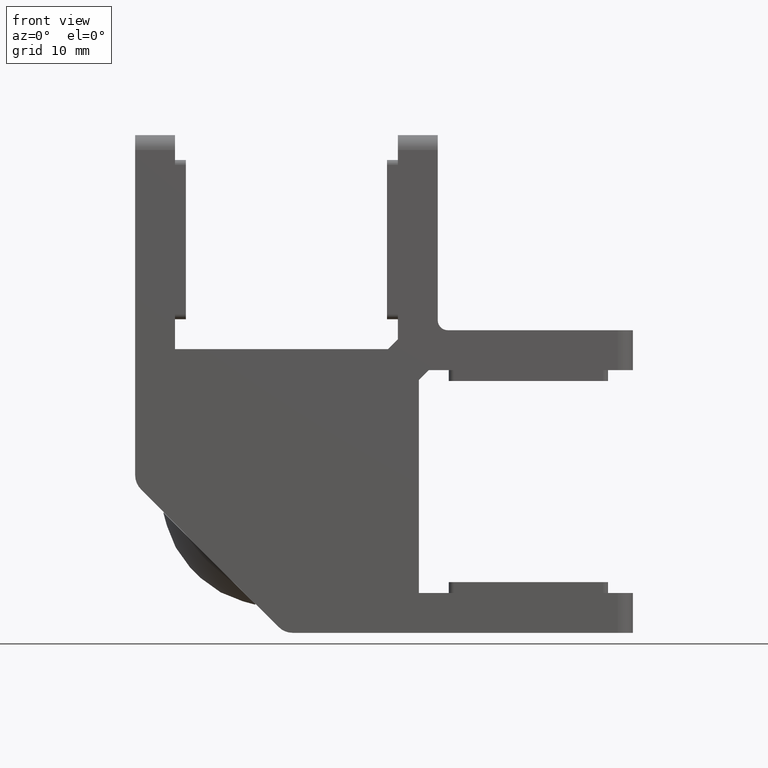
[diagram: clean part render]
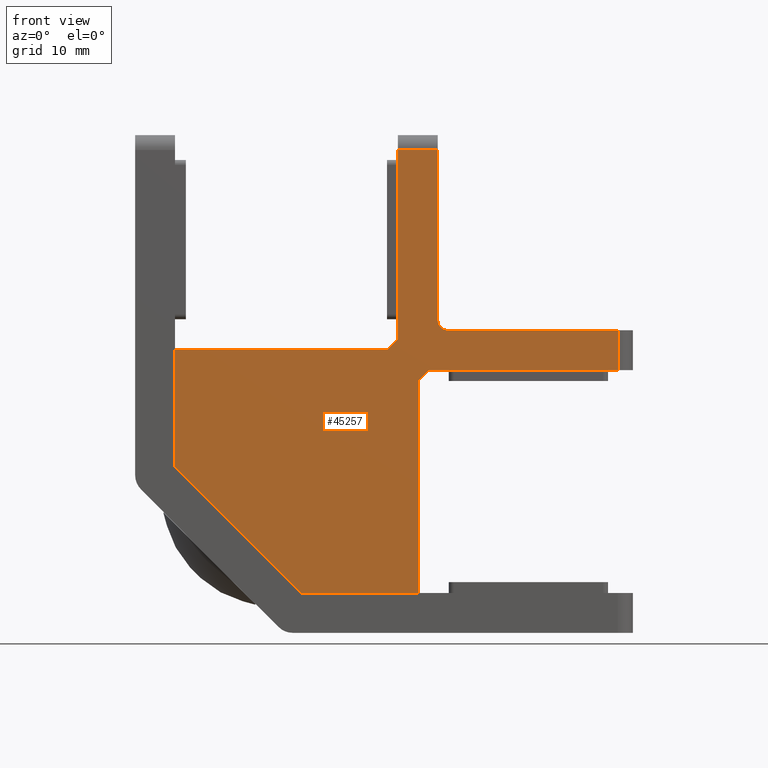
[diagram: same view with one face highlighted and labeled with its STEP entity id]
A machine part, front view. The second image highlights one B-rep face of the part: STEP entity #45257.
In plain terms, the highlighted planar face has unit normal (0, 1, 0).
Its self-contained STEP definition (entity closure, byte-faithful):
#224 = DIRECTION ( 'NONE',  ( -1.000000000000000000, 0.000000000000000000, 0.000000000000000000 ) ) ;
#295 = VECTOR ( 'NONE', #224, 1000.000000000000000 ) ;
#1444 = CARTESIAN_POINT ( 'NONE',  ( 0.000000000000000000, -10.00000000000000000, 28.50000000000001421 ) ) ;
#1585 = CARTESIAN_POINT ( 'NONE',  ( 48.49999999999998579, -10.00000000000000000, 26.40000000000000568 ) ) ;
#2387 = DIRECTION ( 'NONE',  ( -0.7071067811865451302, 0.000000000000000000, -0.7071067811865500152 ) ) ;
#2462 = DIRECTION ( 'NONE',  ( 0.000000000000000000, 1.000000000000000000, -0.000000000000000000 ) ) ;
#2594 = VERTEX_POINT ( 'NONE', #46825 ) ;
#2857 = PLANE ( 'NONE',  #28027 ) ;
#4964 = VERTEX_POINT ( 'NONE', #30209 ) ;
#5216 = VECTOR ( 'NONE', #13204, 1000.000000000000114 ) ;
#7483 = LINE ( 'NONE', #61881, #34660 ) ;
#8284 = EDGE_CURVE ( 'NONE', #58842, #2594, #13595, .T. ) ;
#8390 = LINE ( 'NONE', #31306, #43127 ) ;
#8475 = VERTEX_POINT ( 'NONE', #10373 ) ;
#9007 = VECTOR ( 'NONE', #18798, 1000.000000000000000 ) ;
#9622 = CARTESIAN_POINT ( 'NONE',  ( 28.49999999999998934, -10.00000000000000000, 0.000000000000000000 ) ) ;
#10345 = VECTOR ( 'NONE', #18848, 1000.000000000000000 ) ;
#10373 = CARTESIAN_POINT ( 'NONE',  ( 3.999999999999994671, -10.00000000000000000, 16.65999999999999659 ) ) ;
#10638 = LINE ( 'NONE', #45583, #40045 ) ;
#11154 = CARTESIAN_POINT ( 'NONE',  ( 25.39999999999998082, -10.00000000000000000, 28.50000000000001421 ) ) ;
#11646 = CARTESIAN_POINT ( 'NONE',  ( 31.39999999999999147, -10.00000000000000000, 31.40000000000001279 ) ) ;
#11657 = CARTESIAN_POINT ( 'NONE',  ( 29.49999999999998579, -10.00000000000000000, 26.40000000000000568 ) ) ;
#12176 = LINE ( 'NONE', #30200, #23430 ) ;
#12858 = EDGE_CURVE ( 'NONE', #2594, #53572, #54065, .T. ) ;
#13204 = DIRECTION ( 'NONE',  ( 0.7071067811865451302, 0.000000000000000000, 0.7071067811865500152 ) ) ;
#13265 = VERTEX_POINT ( 'NONE', #11154 ) ;
#13595 = LINE ( 'NONE', #23202, #59687 ) ;
#13667 = ORIENTED_EDGE ( 'NONE', *, *, #8284, .T. ) ;
#13830 = EDGE_CURVE ( 'NONE', #15611, #24230, #59630, .T. ) ;
#13861 = CARTESIAN_POINT ( 'NONE',  ( 30.39999999999997016, -10.00000000000000000, -2.152473211007954343E-14 ) ) ;
#14259 = DIRECTION ( 'NONE',  ( 0.000000000000000000, 0.000000000000000000, -1.000000000000000000 ) ) ;
#14521 = EDGE_CURVE ( 'NONE', #23557, #44927, #27133, .T. ) ;
#15611 = VERTEX_POINT ( 'NONE', #57859 ) ;
#15849 = ORIENTED_EDGE ( 'NONE', *, *, #53655, .T. ) ;
#15919 = CARTESIAN_POINT ( 'NONE',  ( 30.40000000000000213, -10.00000000000000000, 48.50000000000000711 ) ) ;
#16495 = DIRECTION ( 'NONE',  ( 0.000000000000000000, 0.000000000000000000, 1.000000000000000000 ) ) ;
#16973 = EDGE_CURVE ( 'NONE', #44927, #28549, #46578, .T. ) ;
#16978 = CARTESIAN_POINT ( 'NONE',  ( 28.49999999999998934, -10.00000000000000000, 25.40000000000000568 ) ) ;
#17645 = VECTOR ( 'NONE', #14259, 1000.000000000000000 ) ;
#18747 = VERTEX_POINT ( 'NONE', #29263 ) ;
#18798 = DIRECTION ( 'NONE',  ( -6.454785026890447594E-16, 0.000000000000000000, -1.000000000000000000 ) ) ;
#18848 = DIRECTION ( 'NONE',  ( 1.000000000000000000, -0.000000000000000000, 0.000000000000000000 ) ) ;
#19805 = LINE ( 'NONE', #48105, #55311 ) ;
#20005 = AXIS2_PLACEMENT_3D ( 'NONE', #11646, #54871, #16495 ) ;
#20316 = FACE_OUTER_BOUND ( 'NONE', #53698, .T. ) ;
#20832 = EDGE_CURVE ( 'NONE', #43767, #15611, #59972, .T. ) ;
#20917 = DIRECTION ( 'NONE',  ( -7.325690354631776256E-17, 0.000000000000000000, -1.000000000000000000 ) ) ;
#21191 = ORIENTED_EDGE ( 'NONE', *, *, #32010, .F. ) ;
#23202 = CARTESIAN_POINT ( 'NONE',  ( 0.000000000000000000, -10.00000000000000000, 30.40000000000000924 ) ) ;
#23407 = EDGE_CURVE ( 'NONE', #24230, #13265, #8390, .T. ) ;
#23430 = VECTOR ( 'NONE', #20917, 1000.000000000000000 ) ;
#23557 = VERTEX_POINT ( 'NONE', #16978 ) ;
#23880 = EDGE_CURVE ( 'NONE', #37478, #8475, #12176, .T. ) ;
#24230 = VERTEX_POINT ( 'NONE', #62179 ) ;
#24498 = CARTESIAN_POINT ( 'NONE',  ( 26.39999999999999503, -10.00000000000000000, 48.50000000000000711 ) ) ;
#26424 = CARTESIAN_POINT ( 'NONE',  ( 30.39999999999998792, -10.00000000000000000, 31.40000000000001279 ) ) ;
#27133 = LINE ( 'NONE', #35587, #5216 ) ;
#28027 = AXIS2_PLACEMENT_3D ( 'NONE', #59848, #2462, #31378 ) ;
#28089 = ORIENTED_EDGE ( 'NONE', *, *, #13830, .T. ) ;
#28203 = DIRECTION ( 'NONE',  ( 7.080503983578804809E-16, 0.000000000000000000, 1.000000000000000000 ) ) ;
#28549 = VERTEX_POINT ( 'NONE', #1585 ) ;
#29263 = CARTESIAN_POINT ( 'NONE',  ( 16.66000000000009962, -10.00000000000000000, 4.000000000000000000 ) ) ;
#30200 = CARTESIAN_POINT ( 'NONE',  ( 3.999999999999994227, -10.00000000000000000, -2.930276141852706065E-16 ) ) ;
#30209 = CARTESIAN_POINT ( 'NONE',  ( 28.49999999999998934, -10.00000000000000000, 4.000000000000000000 ) ) ;
#31306 = CARTESIAN_POINT ( 'NONE',  ( -1.549999999999929878, -10.00000000000000000, 1.549999999999919220 ) ) ;
#31378 = DIRECTION ( 'NONE',  ( 0.000000000000000000, 0.000000000000000000, 1.000000000000000000 ) ) ;
#32010 = EDGE_CURVE ( 'NONE', #23557, #4964, #48548, .T. ) ;
#34660 = VECTOR ( 'NONE', #57670, 1000.000000000000114 ) ;
#34802 = EDGE_CURVE ( 'NONE', #28549, #58842, #10638, .T. ) ;
#35194 = ORIENTED_EDGE ( 'NONE', *, *, #58894, .F. ) ;
#35587 = CARTESIAN_POINT ( 'NONE',  ( 1.550000000000089528, -10.00000000000000000, -1.550000000000078648 ) ) ;
#35892 = ORIENTED_EDGE ( 'NONE', *, *, #12858, .T. ) ;
#37478 = VERTEX_POINT ( 'NONE', #54997 ) ;
#37785 = ORIENTED_EDGE ( 'NONE', *, *, #23880, .T. ) ;
#38107 = EDGE_CURVE ( 'NONE', #53572, #43767, #38198, .T. ) ;
#38198 = LINE ( 'NONE', #13861, #52558 ) ;
#40045 = VECTOR ( 'NONE', #45167, 1000.000000000000000 ) ;
#40095 = ORIENTED_EDGE ( 'NONE', *, *, #23407, .T. ) ;
#43127 = VECTOR ( 'NONE', #2387, 1000.000000000000114 ) ;
#43767 = VERTEX_POINT ( 'NONE', #15919 ) ;
#44478 = ORIENTED_EDGE ( 'NONE', *, *, #16973, .T. ) ;
#44927 = VERTEX_POINT ( 'NONE', #11657 ) ;
#45162 = VECTOR ( 'NONE', #54625, 1000.000000000000000 ) ;
#45167 = DIRECTION ( 'NONE',  ( -0.000000000000000000, 0.000000000000000000, 1.000000000000000000 ) ) ;
#45257 = ADVANCED_FACE ( 'NONE', ( #20316 ), #2857, .F. ) ;
#45463 = EDGE_CURVE ( 'NONE', #18747, #8475, #7483, .T. ) ;
#45583 = CARTESIAN_POINT ( 'NONE',  ( 48.49999999999998579, -10.00000000000000000, 30.40000000000000924 ) ) ;
#45807 = ORIENTED_EDGE ( 'NONE', *, *, #20832, .T. ) ;
#46372 = ORIENTED_EDGE ( 'NONE', *, *, #14521, .T. ) ;
#46578 = LINE ( 'NONE', #52823, #10345 ) ;
#46825 = CARTESIAN_POINT ( 'NONE',  ( 31.39999999999999147, -10.00000000000000000, 30.40000000000000924 ) ) ;
#47422 = LINE ( 'NONE', #1444, #45162 ) ;
#47481 = DIRECTION ( 'NONE',  ( 1.000000000000000000, -0.000000000000000000, 0.000000000000000000 ) ) ;
#47905 = DIRECTION ( 'NONE',  ( -1.000000000000000000, 0.000000000000000000, 0.000000000000000000 ) ) ;
#48105 = CARTESIAN_POINT ( 'NONE',  ( 0.000000000000000000, -10.00000000000000000, 4.000000000000000000 ) ) ;
#48548 = LINE ( 'NONE', #9622, #17645 ) ;
#50515 = ORIENTED_EDGE ( 'NONE', *, *, #45463, .F. ) ;
#52558 = VECTOR ( 'NONE', #28203, 1000.000000000000000 ) ;
#52823 = CARTESIAN_POINT ( 'NONE',  ( 0.000000000000000000, -10.00000000000000000, 26.40000000000000568 ) ) ;
#53572 = VERTEX_POINT ( 'NONE', #26424 ) ;
#53655 = EDGE_CURVE ( 'NONE', #18747, #4964, #19805, .T. ) ;
#53698 = EDGE_LOOP ( 'NONE', ( #21191, #46372, #44478, #60497, #13667, #35892, #61598, #45807, #28089, #40095, #35194, #37785, #50515, #15849 ) ) ;
#53984 = CARTESIAN_POINT ( 'NONE',  ( 48.49999999999998579, -10.00000000000000000, 30.40000000000000924 ) ) ;
#54065 = CIRCLE ( 'NONE', #20005, 1.000000000000000888 ) ;
#54625 = DIRECTION ( 'NONE',  ( 1.000000000000000000, -0.000000000000000000, 0.000000000000000000 ) ) ;
#54871 = DIRECTION ( 'NONE',  ( 0.000000000000000000, 1.000000000000000000, -0.000000000000000000 ) ) ;
#54997 = CARTESIAN_POINT ( 'NONE',  ( 3.999999999999995559, -10.00000000000000000, 28.50000000000001421 ) ) ;
#55311 = VECTOR ( 'NONE', #47481, 1000.000000000000000 ) ;
#57670 = DIRECTION ( 'NONE',  ( -0.7071067811865505703, 0.000000000000000000, 0.7071067811865444641 ) ) ;
#57859 = CARTESIAN_POINT ( 'NONE',  ( 26.39999999999999503, -10.00000000000000000, 48.50000000000000711 ) ) ;
#58842 = VERTEX_POINT ( 'NONE', #53984 ) ;
#58894 = EDGE_CURVE ( 'NONE', #37478, #13265, #47422, .T. ) ;
#59630 = LINE ( 'NONE', #62034, #9007 ) ;
#59687 = VECTOR ( 'NONE', #47905, 1000.000000000000000 ) ;
#59848 = CARTESIAN_POINT ( 'NONE',  ( 0.000000000000000000, -10.00000000000000000, 0.000000000000000000 ) ) ;
#59972 = LINE ( 'NONE', #24498, #295 ) ;
#60497 = ORIENTED_EDGE ( 'NONE', *, *, #34802, .T. ) ;
#61598 = ORIENTED_EDGE ( 'NONE', *, *, #38107, .T. ) ;
#61881 = CARTESIAN_POINT ( 'NONE',  ( 10.32999999999997875, -10.00000000000000000, 10.33000000000006580 ) ) ;
#62034 = CARTESIAN_POINT ( 'NONE',  ( 26.39999999999996660, -10.00000000000000000, -1.704063247099075617E-14 ) ) ;
#62179 = CARTESIAN_POINT ( 'NONE',  ( 26.39999999999998082, -10.00000000000000000, 29.50000000000002132 ) ) ;